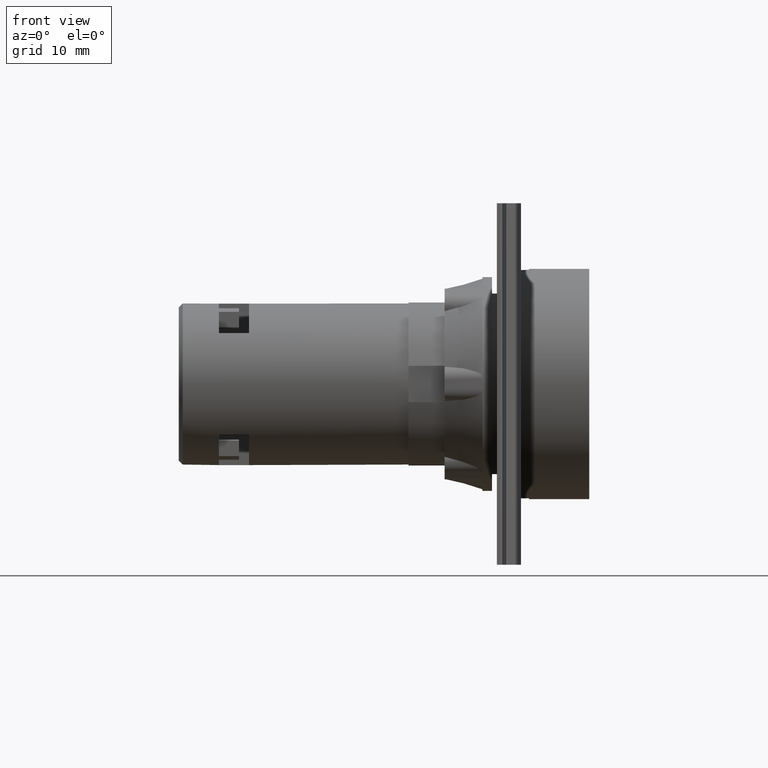
[diagram: clean part render]
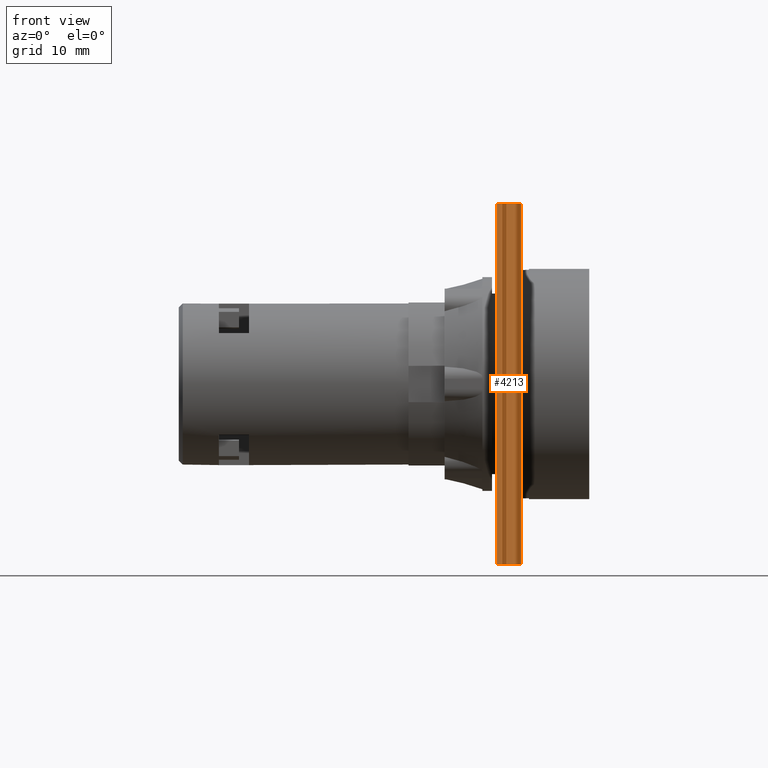
[diagram: same view with one face highlighted and labeled with its STEP entity id]
A machine part, front view. The second image highlights one B-rep face of the part: STEP entity #4213.
In plain terms, the highlighted face is a freeform B-spline surface patch.
Its self-contained STEP definition (entity closure, byte-faithful):
#4144=CARTESIAN_POINT('',(-12.704183619849172,-62.725398273954283,45.0));
#4145=VERTEX_POINT('',#4144);
#4152=CARTESIAN_POINT('',(-12.704183619849172,-62.725398273954283,0.0));
#4153=VERTEX_POINT('',#4152);
#4154=CARTESIAN_POINT('',(-12.704183619849172,-62.725398273954283,0.0));
#4155=DIRECTION('',(0.0,0.0,1.0));
#4156=VECTOR('',#4155,45.0);
#4157=LINE('',#4154,#4156);
#4158=EDGE_CURVE('',#4153,#4145,#4157,.T.);
#4173=CARTESIAN_POINT('',(-15.704183619849182,-62.725398273954283,0.0));
#4174=CARTESIAN_POINT('',(-14.283734517597093,-58.710287807173117,0.0));
#4175=CARTESIAN_POINT('',(-13.047229203726467,-69.825373706267470,0.0));
#4176=CARTESIAN_POINT('',(-14.371498841514271,-57.028426828334801,0.0));
#4177=CARTESIAN_POINT('',(-12.704183619849177,-62.725398273954298,0.0));
#4178=CARTESIAN_POINT('',(-15.704183619849182,-62.725398273954283,45.0));
#4179=CARTESIAN_POINT('',(-14.283734517597093,-58.710287807173117,45.0));
#4180=CARTESIAN_POINT('',(-13.047229203726467,-69.825373706267470,45.0));
#4181=CARTESIAN_POINT('',(-14.371498841514271,-57.028426828334801,45.0));
#4182=CARTESIAN_POINT('',(-12.704183619849177,-62.725398273954298,45.0));
#4183=B_SPLINE_SURFACE_WITH_KNOTS('',4,1,((#4173,#4178),(#4174,#4179),(#4175,#4180),(#4176,#4181),(#4177,#4182)),.UNSPECIFIED.,.F.,.F.,.U.,(5,5),(2,2),(0.0,1.0),(0.0,4.500000000000000),.UNSPECIFIED.);
#4184=CARTESIAN_POINT('',(-15.704183619849179,-62.725398273954283,45.0));
#4185=VERTEX_POINT('',#4184);
#4186=CARTESIAN_POINT('',(-12.704183619849177,-62.725398273954298,45.0));
#4187=CARTESIAN_POINT('',(-14.371498841514271,-57.028426828334801,45.0));
#4188=CARTESIAN_POINT('',(-13.047229203726467,-69.825373706267470,45.0));
#4189=CARTESIAN_POINT('',(-14.283734517597093,-58.710287807173117,45.0));
#4190=CARTESIAN_POINT('',(-15.704183619849182,-62.725398273954283,45.0));
#4191=QUASI_UNIFORM_CURVE('',4,(#4186,#4187,#4188,#4189,#4190),.UNSPECIFIED.,.F.,.U.);
#4192=EDGE_CURVE('',#4145,#4185,#4191,.T.);
#4193=ORIENTED_EDGE('',*,*,#4192,.T.);
#4194=CARTESIAN_POINT('',(-15.704183619849179,-62.725398273954283,0.0));
#4195=VERTEX_POINT('',#4194);
#4196=CARTESIAN_POINT('',(-15.704183619849179,-62.725398273954283,0.0));
#4197=DIRECTION('',(0.0,0.0,1.0));
#4198=VECTOR('',#4197,45.0);
#4199=LINE('',#4196,#4198);
#4200=EDGE_CURVE('',#4195,#4185,#4199,.T.);
#4201=ORIENTED_EDGE('',*,*,#4200,.F.);
#4202=CARTESIAN_POINT('',(-15.704183619849182,-62.725398273954283,0.0));
#4203=CARTESIAN_POINT('',(-14.283734517597093,-58.710287807173117,0.0));
#4204=CARTESIAN_POINT('',(-13.047229203726467,-69.825373706267470,0.0));
#4205=CARTESIAN_POINT('',(-14.371498841514271,-57.028426828334801,0.0));
#4206=CARTESIAN_POINT('',(-12.704183619849177,-62.725398273954298,0.0));
#4207=QUASI_UNIFORM_CURVE('',4,(#4202,#4203,#4204,#4205,#4206),.UNSPECIFIED.,.F.,.U.);
#4208=EDGE_CURVE('',#4195,#4153,#4207,.T.);
#4209=ORIENTED_EDGE('',*,*,#4208,.T.);
#4210=ORIENTED_EDGE('',*,*,#4158,.T.);
#4211=EDGE_LOOP('',(#4193,#4201,#4209,#4210));
#4212=FACE_OUTER_BOUND('',#4211,.T.);
#4213=ADVANCED_FACE('',(#4212),#4183,.T.);